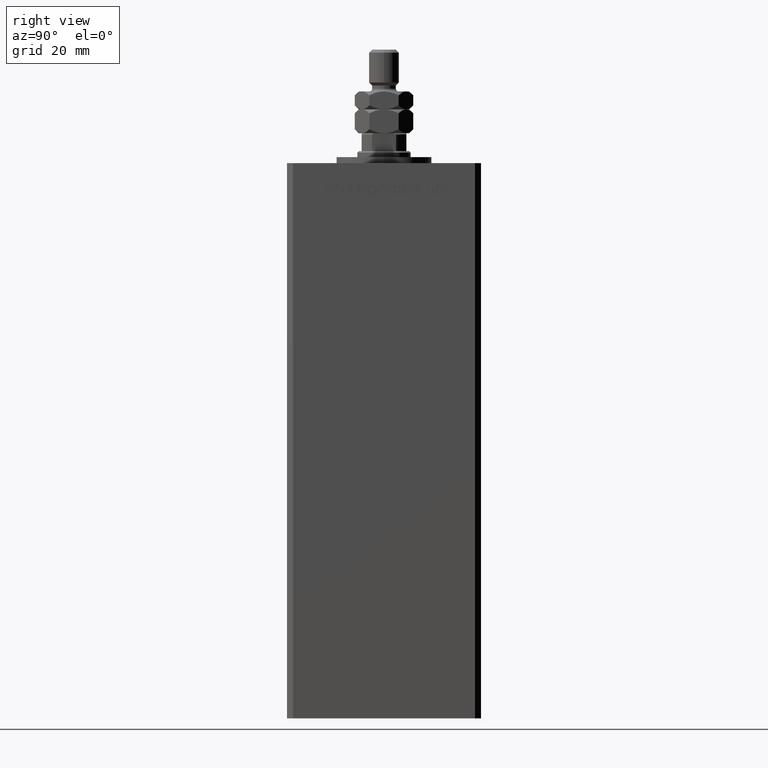
[diagram: clean part render]
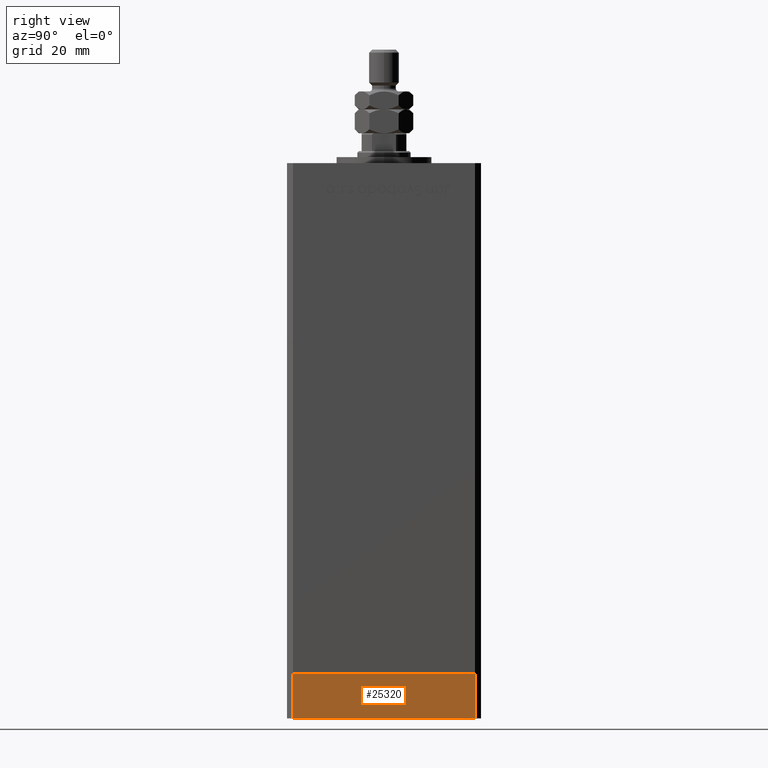
[diagram: same view with one face highlighted and labeled with its STEP entity id]
A machine part, right view. The second image highlights one B-rep face of the part: STEP entity #25320.
In plain terms, the highlighted planar face has unit normal (1, -0, 0).
Its self-contained STEP definition (entity closure, byte-faithful):
#2060 = VERTEX_POINT ( 'NONE', #28928 ) ;
#3069 = EDGE_CURVE ( 'NONE', #2060, #15341, #30259, .T. ) ;
#9364 = EDGE_CURVE ( 'NONE', #14176, #15341, #51640, .T. ) ;
#11167 = CARTESIAN_POINT ( 'NONE',  ( -37.49999999999998579, -30.50000000000001421, 0.000000000000000000 ) ) ;
#11410 = ORIENTED_EDGE ( 'NONE', *, *, #46462, .T. ) ;
#11559 = DIRECTION ( 'NONE',  ( -1.000000000000000000, -4.550094363217855288E-16, 0.000000000000000000 ) ) ;
#11665 = CARTESIAN_POINT ( 'NONE',  ( -37.50000000000001421, 30.49999999999998579, -15.00000000000000000 ) ) ;
#14176 = VERTEX_POINT ( 'NONE', #52094 ) ;
#15341 = VERTEX_POINT ( 'NONE', #11167 ) ;
#15815 = ORIENTED_EDGE ( 'NONE', *, *, #42255, .F. ) ;
#20244 = CARTESIAN_POINT ( 'NONE',  ( -37.50000000000001421, 30.49999999999998579, -15.00000000000000000 ) ) ;
#23185 = ORIENTED_EDGE ( 'NONE', *, *, #3069, .F. ) ;
#25320 = ADVANCED_FACE ( 'NONE', ( #32470 ), #53126, .T. ) ;
#27273 = AXIS2_PLACEMENT_3D ( 'NONE', #52868, #11559, #27864 ) ;
#27441 = CARTESIAN_POINT ( 'NONE',  ( -37.49999999999998579, -30.50000000000001421, -15.00000000000000000 ) ) ;
#27719 = DIRECTION ( 'NONE',  ( 0.000000000000000000, 0.000000000000000000, 1.000000000000000000 ) ) ;
#27864 = DIRECTION ( 'NONE',  ( 4.550094363217855288E-16, -1.000000000000000000, 0.000000000000000000 ) ) ;
#28928 = CARTESIAN_POINT ( 'NONE',  ( -37.50000000000001421, 30.49999999999998579, 0.000000000000000000 ) ) ;
#29203 = DIRECTION ( 'NONE',  ( 4.550094363217855288E-16, -1.000000000000000000, 0.000000000000000000 ) ) ;
#30259 = LINE ( 'NONE', #46579, #39609 ) ;
#32129 = VERTEX_POINT ( 'NONE', #11665 ) ;
#32414 = LINE ( 'NONE', #52010, #40555 ) ;
#32470 = FACE_OUTER_BOUND ( 'NONE', #51102, .T. ) ;
#36543 = DIRECTION ( 'NONE',  ( 4.550094363217855288E-16, -1.000000000000000000, 0.000000000000000000 ) ) ;
#39609 = VECTOR ( 'NONE', #29203, 1000.000000000000000 ) ;
#39964 = VECTOR ( 'NONE', #27719, 1000.000000000000000 ) ;
#40352 = ORIENTED_EDGE ( 'NONE', *, *, #9364, .T. ) ;
#40555 = VECTOR ( 'NONE', #44658, 1000.000000000000000 ) ;
#42255 = EDGE_CURVE ( 'NONE', #32129, #2060, #32414, .T. ) ;
#42408 = VECTOR ( 'NONE', #36543, 1000.000000000000000 ) ;
#44658 = DIRECTION ( 'NONE',  ( 0.000000000000000000, 0.000000000000000000, 1.000000000000000000 ) ) ;
#46462 = EDGE_CURVE ( 'NONE', #32129, #14176, #49321, .T. ) ;
#46579 = CARTESIAN_POINT ( 'NONE',  ( -37.50000000000001421, 30.49999999999998579, 0.000000000000000000 ) ) ;
#49321 = LINE ( 'NONE', #20244, #42408 ) ;
#51102 = EDGE_LOOP ( 'NONE', ( #23185, #15815, #11410, #40352 ) ) ;
#51640 = LINE ( 'NONE', #27441, #39964 ) ;
#52010 = CARTESIAN_POINT ( 'NONE',  ( -37.50000000000001421, 30.49999999999998579, -15.00000000000000000 ) ) ;
#52094 = CARTESIAN_POINT ( 'NONE',  ( -37.49999999999998579, -30.50000000000001421, -15.00000000000000000 ) ) ;
#52868 = CARTESIAN_POINT ( 'NONE',  ( -37.50000000000001421, 30.49999999999998579, -15.00000000000000000 ) ) ;
#53126 = PLANE ( 'NONE',  #27273 ) ;